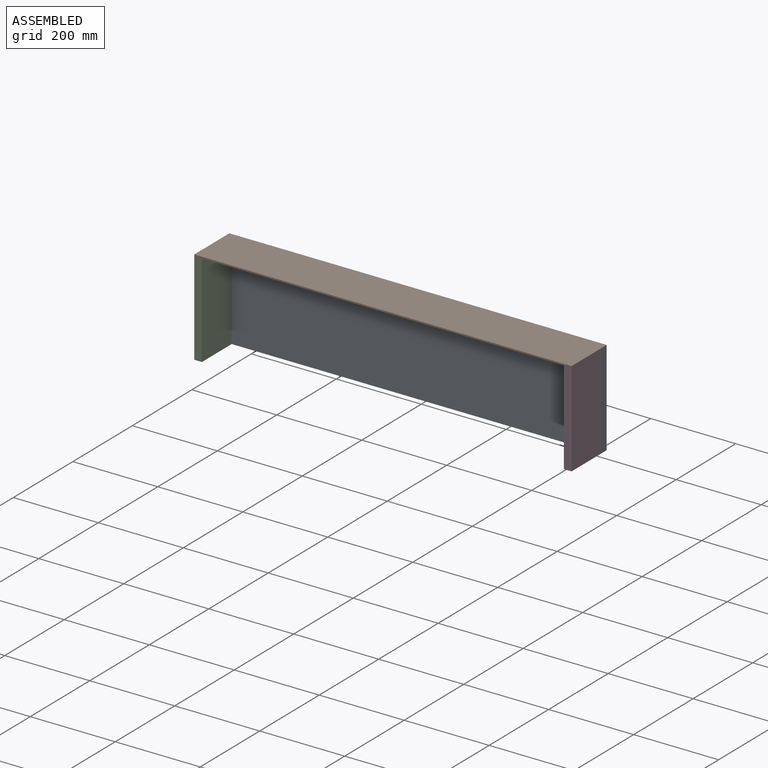
[diagram: assembled view]
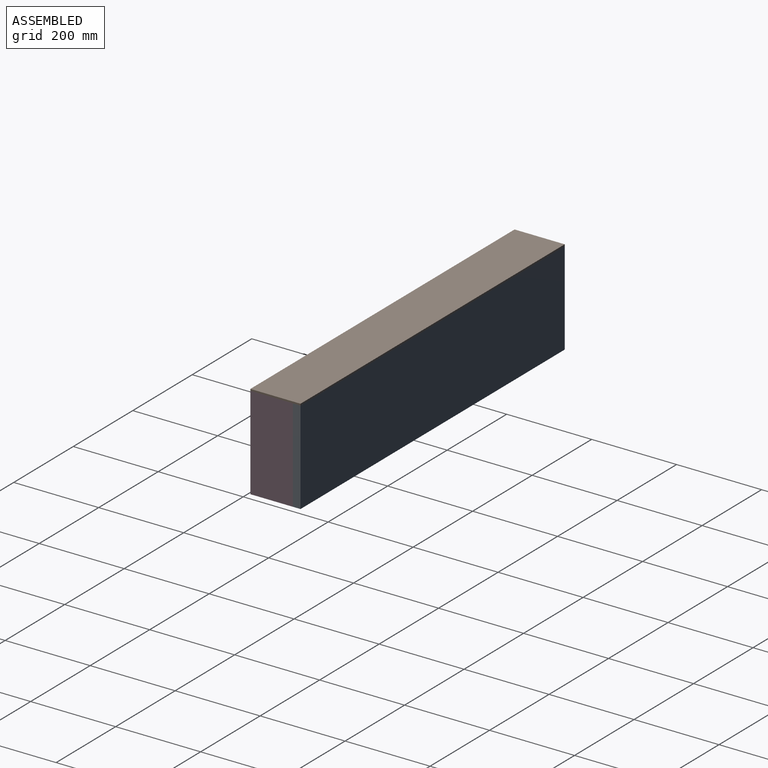
[diagram: assembled view, second angle]
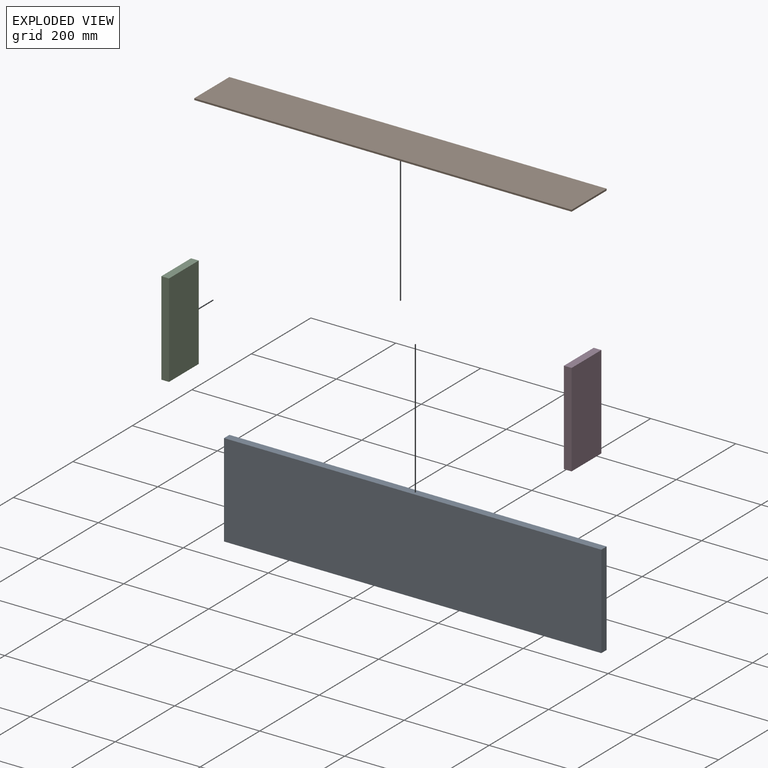
[diagram: exploded view]
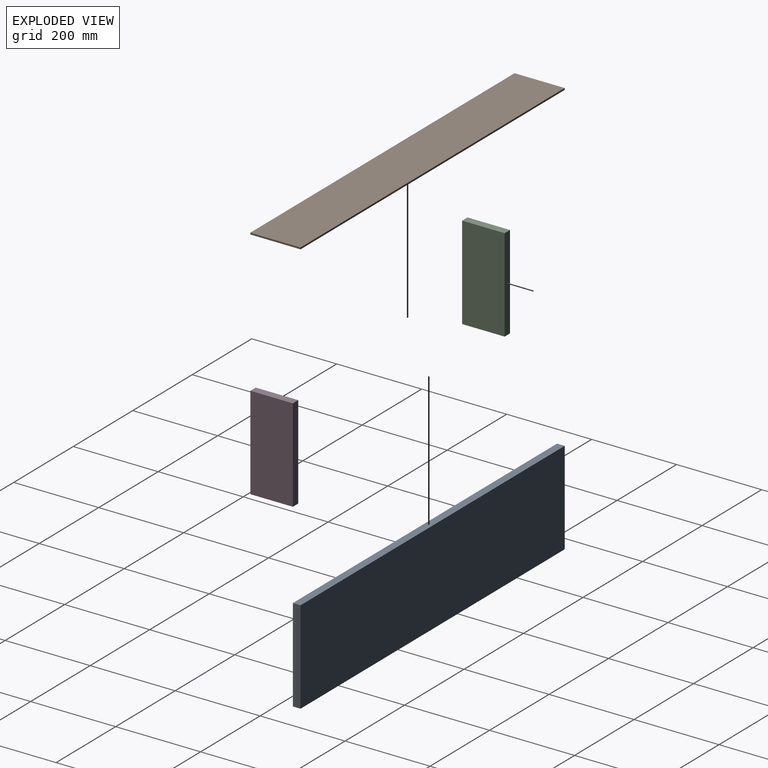
[diagram: exploded view, second angle]
ASSEMBLY  parts=4 mates=3
PART A: 6 faces, bbox 888x18x220 mm
  f0: plane 220x18mm, normal (-1,0,0), area 3960mm2, adj f1,f3,f4,f5
  f1: plane 888x18mm, normal (0,0,-1), area 15984mm2, adj f0,f2,f4,f5
  f2: plane 220x18mm, normal (1,0,0), area 3960mm2, adj f1,f3,f4,f5
  f3: plane 888x18mm, normal (0,0,1), area 15984mm2, adj f0,f2,f4,f5
  f4: plane 888x220mm, normal (0,-1,0), area 195360mm2, adj f0,f1,f2,f3
  f5: plane 888x220mm, normal (0,1,0), area 195360mm2, adj f0,f1,f2,f3
PART B: 6 faces, bbox 888x118x4 mm
  f0: plane 118x4mm, normal (-1,0,0), area 472mm2, adj f1,f3,f4,f5
  f1: plane 888x4mm, normal (0,1,0), area 3552mm2, adj f0,f2,f4,f5
  f2: plane 118x4mm, normal (1,0,0), area 472mm2, adj f1,f3,f4,f5
  f3: plane 888x4mm, normal (0,-1,0), area 3552mm2, adj f0,f2,f4,f5
  f4: plane 888x118mm, normal (0,0,-1), area 104784mm2, adj f0,f1,f2,f3
  f5: plane 888x118mm, normal (0,0,1), area 104784mm2, adj f0,f1,f2,f3
PART C: 6 faces, bbox 100x18x220 mm
  f0: plane 100x18mm, normal (0,0,-1), area 1800mm2, adj f1,f3,f4,f5
  f1: plane 220x18mm, normal (1,0,0), area 3960mm2, adj f0,f2,f4,f5
  f2: plane 100x18mm, normal (0,0,1), area 1800mm2, adj f1,f3,f4,f5
  f3: plane 220x18mm, normal (-1,0,0), area 3960mm2, adj f0,f2,f4,f5
  f4: plane 220x100mm, normal (0,-1,0), area 22000mm2, adj f0,f1,f2,f3
  f5: plane 220x100mm, normal (0,1,0), area 22000mm2, adj f0,f1,f2,f3
PART D: same geometry as C
PLACE A rot(axis=(0,0,1),180deg) t=(119.8,44.3,-163.62)mm
PLACE B t=(98.17,-37.7,60.38)mm
PLACE C rot(axis=(0,0,1),90deg) t=(-335.01,651.37,-163.62)mm
PLACE D rot(axis=(0,0,1),90deg) t=(534.99,651.37,-163.62)mm
MATE fastened A.f5 <-> D.f1  axis (0,-1,0) through (552.99,44.3,-302.84)mm
MATE fastened A.f3 <-> B.f4  axis (0,0,1) through (-335.01,62.3,-82.84)mm
MATE fastened A.f5 <-> C.f1  axis (0,-1,0) through (-335.01,44.3,-302.84)mm
